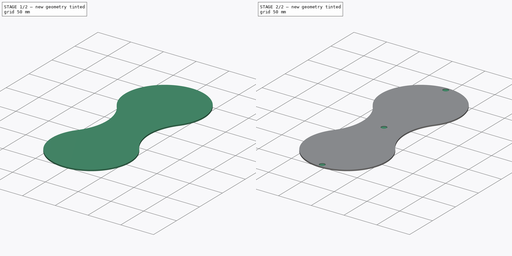
[diagram: build sequence overview — one tinted view per stage of 2, left to right]
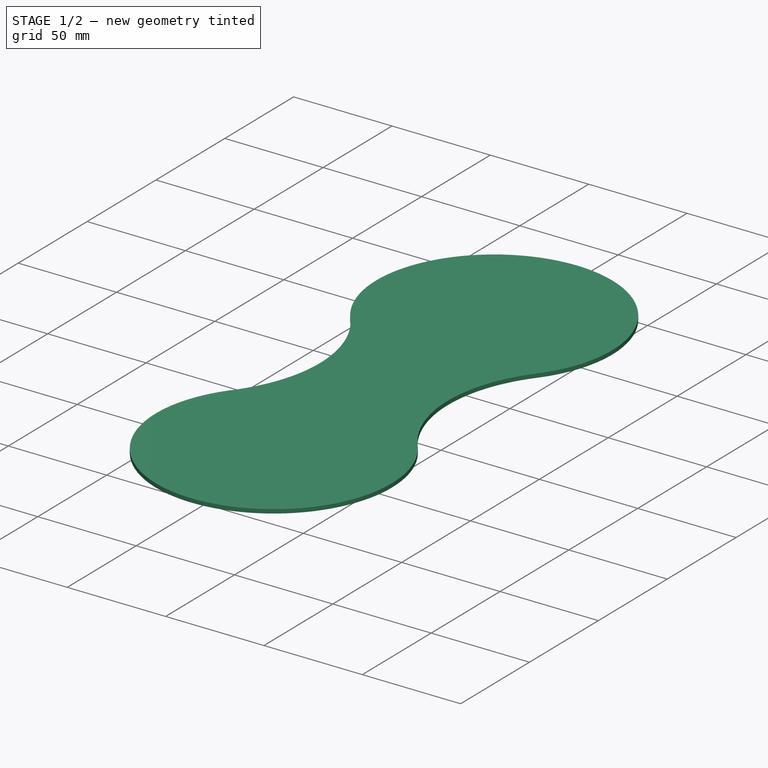
[diagram: stage 1 of 2 — iso view after this stage's code; geometry added in this stage tinted green]
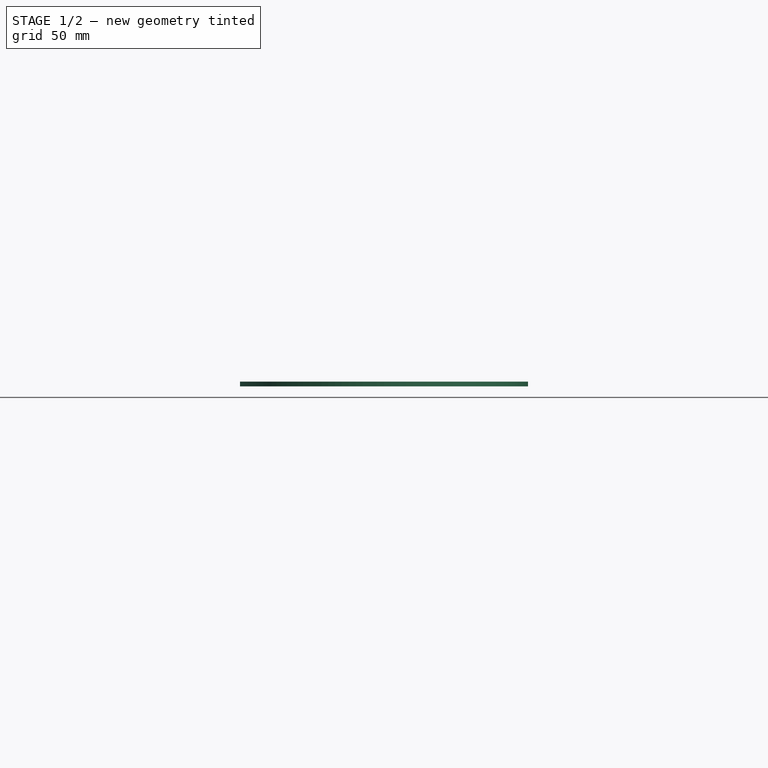
[diagram: stage 1 of 2 — front view after this stage's code; geometry added in this stage tinted green]
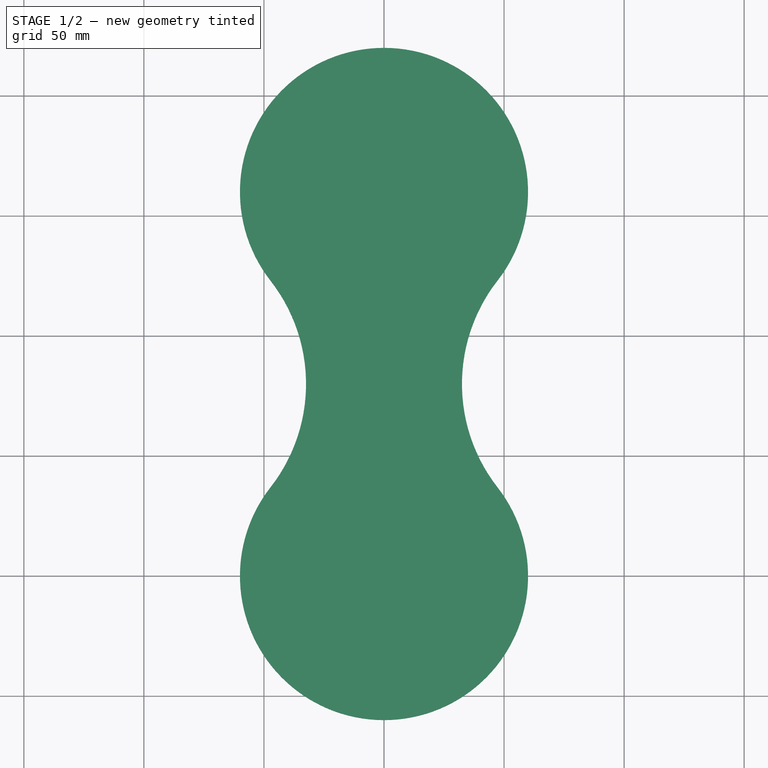
[diagram: stage 1 of 2 — top view after this stage's code; geometry added in this stage tinted green]
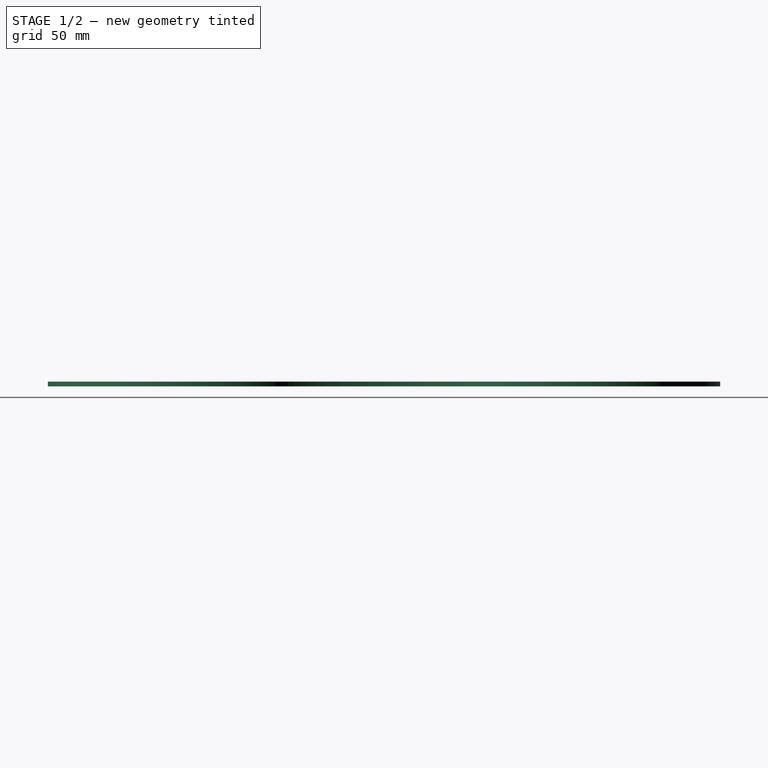
[diagram: stage 1 of 2 — right view after this stage's code; geometry added in this stage tinted green]
FCSTD DOCUMENT  (FreeCAD 0.19R24276 (Git))
Label: Art2SideCover
License: All rights reserved
LicenseURL: http://en.wikipedia.org/wiki/All_rights_reserved
objects: PartDesign::CoordinateSystem×4, Sketcher::SketchObject×2, Spreadsheet::Sheet×1, PartDesign::Pad×1, PartDesign::Pocket×1, PartDesign::Body×1
note: 11 computed .brp shape members not serialized (recipe doc carries the construction recipe); baked Part::Feature solids carry a one-line shape summary decoded from their .brp

FEATURE [Spreadsheet::Sheet] Spreadsheet
  cells = A2=M3BoltBodyRadius; B2(M3BoltBodyRadius)=1.7; A3=M3BoltHeadRadius; B3(M3BoltHeadRadius)=2.95; A4=M3NutCircumradius; B4(M3NutCircumradius)=3.35; A5=M3NutThickness; B5(M3NutThickness)=3; A6=Bearing655ZZBodyRadius; B6(Bearing655ZZBodyRadius)=8.199999999999999; A7=MagnetRadius; B7(MagnetRadius)=4.2; A8=MagnetThickness; B8(MagnetThickness)=1.1
FEATURE [Sketcher::SketchObject] Sketch
  FullyConstrained = true
  MapMode = 5
  Support = -> [XY_Plane]
  sketch-geometry (4):
    g0: ArcOfCircle CenterX=0 CenterY=0 CenterZ=0 NormalX=0 NormalY=0 NormalZ=1 AngleXU=0 Radius=60 StartAngle=2.47872 EndAngle=6.94606
    g1: ArcOfCircle CenterX=102.47 CenterY=80 CenterZ=0 NormalX=0 NormalY=0 NormalZ=1 AngleXU=0 Radius=70 StartAngle=2.47872 EndAngle=3.80447
    g2: ArcOfCircle CenterX=0 CenterY=160 CenterZ=0 NormalX=0 NormalY=0 NormalZ=1 AngleXU=0 Radius=60 StartAngle=5.62031 EndAngle=10.0877
    g3: ArcOfCircle CenterX=-102.47 CenterY=80 CenterZ=0 NormalX=0 NormalY=0 NormalZ=1 AngleXU=0 Radius=70 StartAngle=5.62031 EndAngle=6.94606
  constraints (11):
    c: Coincident(g0,g-1)
    c: PointOnObject(g2,g-2)
    c: Radius(g0) = 60
    c: Tangent(g3,g2) = 1.5708
    c: Tangent(g3,g0) = 1.5708
    c: Tangent(g1,g0) = 1.5708
    c: Tangent(g2,g1) = 1.5708
    c: DistanceY(g0,g2) = 160
    c: Equal(g2,g0)
    c: Equal(g3,g1)
    c: Radius(g1) = 70
FEATURE [PartDesign::Pad] Pad
  Direction = (1,1,1)
  Length = 2
  Length2 = 100
  Profile = -> Sketch
  Refine = true
  Type = 0
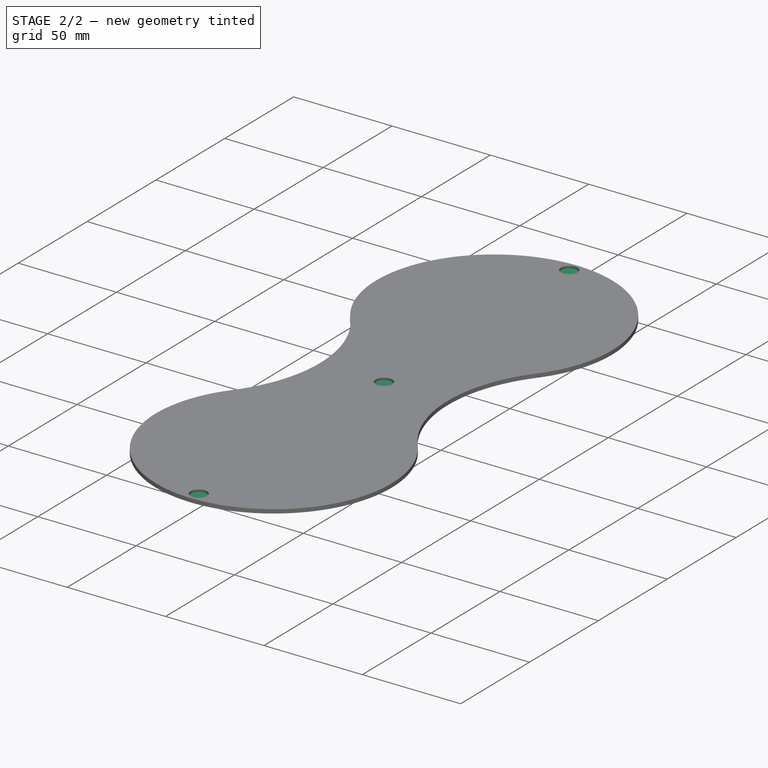
[diagram: stage 2 of 2 — iso view after this stage's code; geometry added in this stage tinted green]
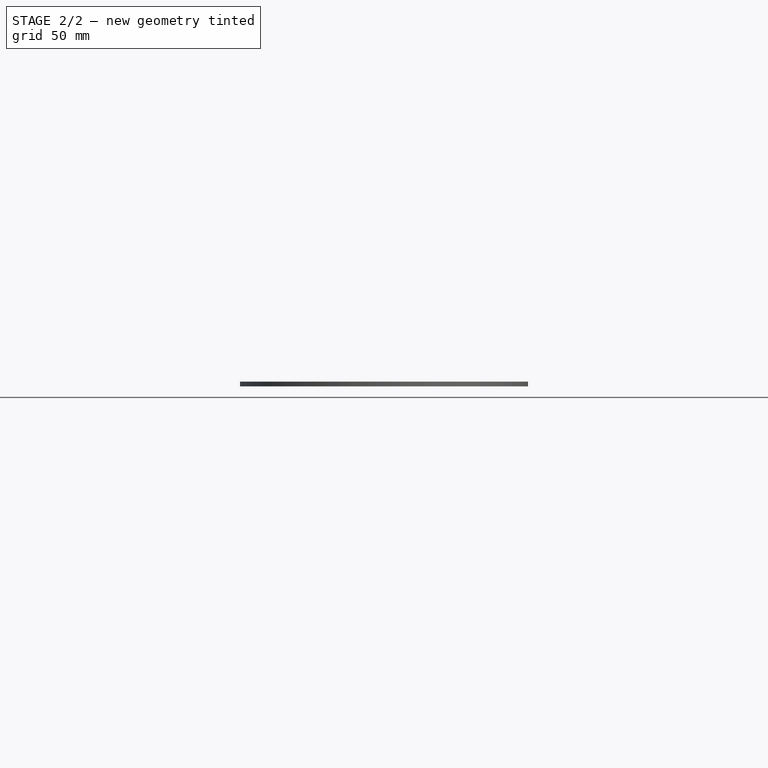
[diagram: stage 2 of 2 — front view after this stage's code; geometry added in this stage tinted green]
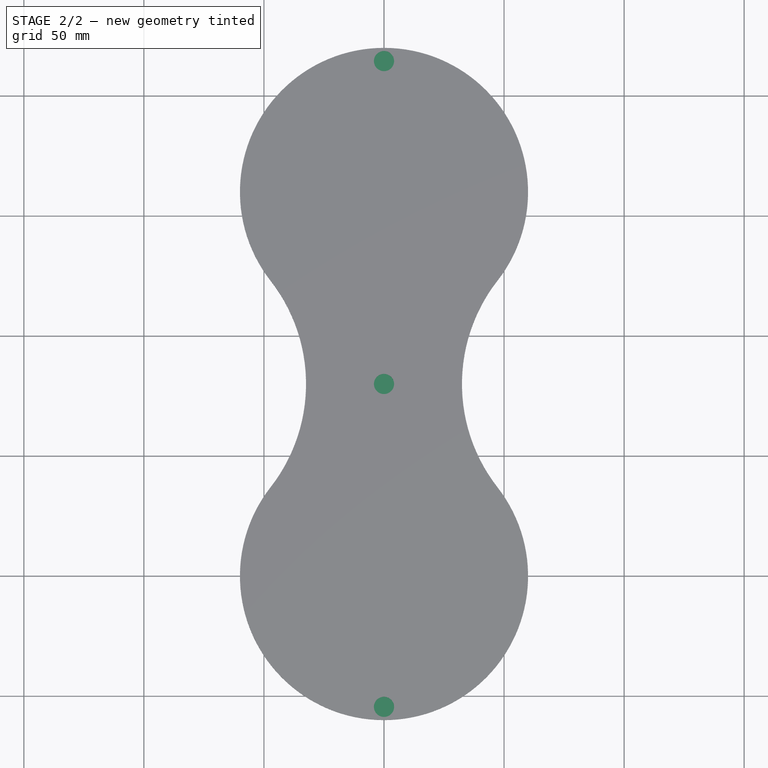
[diagram: stage 2 of 2 — top view after this stage's code; geometry added in this stage tinted green]
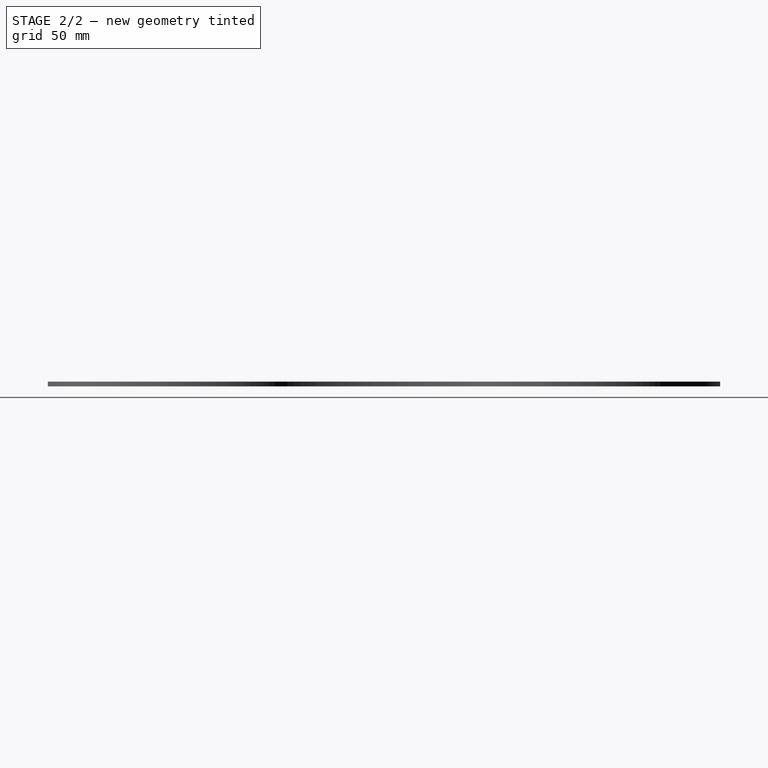
[diagram: stage 2 of 2 — right view after this stage's code; geometry added in this stage tinted green]
FEATURE [Sketcher::SketchObject] Sketch001
  FullyConstrained = true
  MapMode = 5
  Placement = pos=(0,0,2) rot=(0,0,1;0rad)
  Support = -> [Pad]
  expr: Constraints[5] = Spreadsheet.MagnetRadius
  sketch-geometry (3):
    g0: Circle CenterX=0 CenterY=-54.5 CenterZ=0 NormalX=0 NormalY=0 NormalZ=1 AngleXU=0 Radius=4.2
    g1: Circle CenterX=0 CenterY=214.5 CenterZ=0 NormalX=0 NormalY=0 NormalZ=1 AngleXU=0 Radius=4.2
    g2: Circle CenterX=0 CenterY=80 CenterZ=0 NormalX=0 NormalY=0 NormalZ=1 AngleXU=0 Radius=4.2
  constraints (9):
    c: PointOnObject(g0,g-2)
    c: PointOnObject(g1,g-2)
    c: PointOnObject(g2,g-2)
    c: Equal(g1,g2)
    c: Equal(g2,g0)
    c: Radius(g0) = 4.2
    c: DistanceY(g-1,g2) = 80
    c: DistanceY(g0,g2) = 134.5
    c: DistanceY(g2,g1) = 134.5
FEATURE [PartDesign::Pocket] Pocket
  BaseFeature = -> Pad
  Length = 1.1
  Length2 = 100
  Profile = -> Sketch001
  Refine = true
  Type = 0
  expr: Length = Spreadsheet.MagnetThickness
FEATURE [PartDesign::CoordinateSystem] LCS_Art2SideCover
  AttacherType = Attacher::AttachEngine3D
  Placement = pos=(0,0,2) rot=(0,0,1;0rad)
FEATURE [PartDesign::CoordinateSystem] LCS_Magnet
  AttacherType = Attacher::AttachEngine3D
  MapMode = 11
  Placement = pos=(0,-54.5,0.9) rot=(0,0,1;1.5708rad)
  Support = -> [Pocket]
FEATURE [PartDesign::CoordinateSystem] LCS_Magnet1
  AttacherType = Attacher::AttachEngine3D
  MapMode = 11
  Placement = pos=(0,80,0.9) rot=(0,0,1;1.5708rad)
  Support = -> [Pocket]
FEATURE [PartDesign::CoordinateSystem] LCS_Magnet2
  AttacherType = Attacher::AttachEngine3D
  MapMode = 11
  Placement = pos=(0,214.5,0.9) rot=(0,0,1;1.5708rad)
  Support = -> [Pocket]
FEATURE [PartDesign::Body] Body  label="Art2SideCover"
  Group = -> [Sketch,Pad,Sketch001,Pocket,LCS_Art2SideCover,LCS_Magnet,LCS_Magnet1,LCS_Magnet2]
  Origin = -> Origin
  Tip = -> Pocket
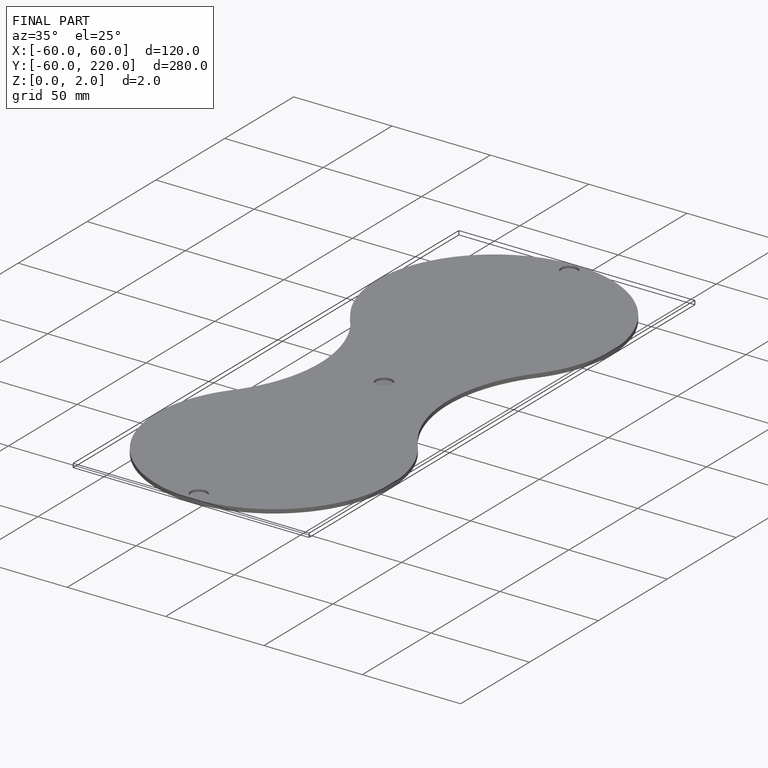
[diagram: finished part — iso view with bounding-box wireframe]
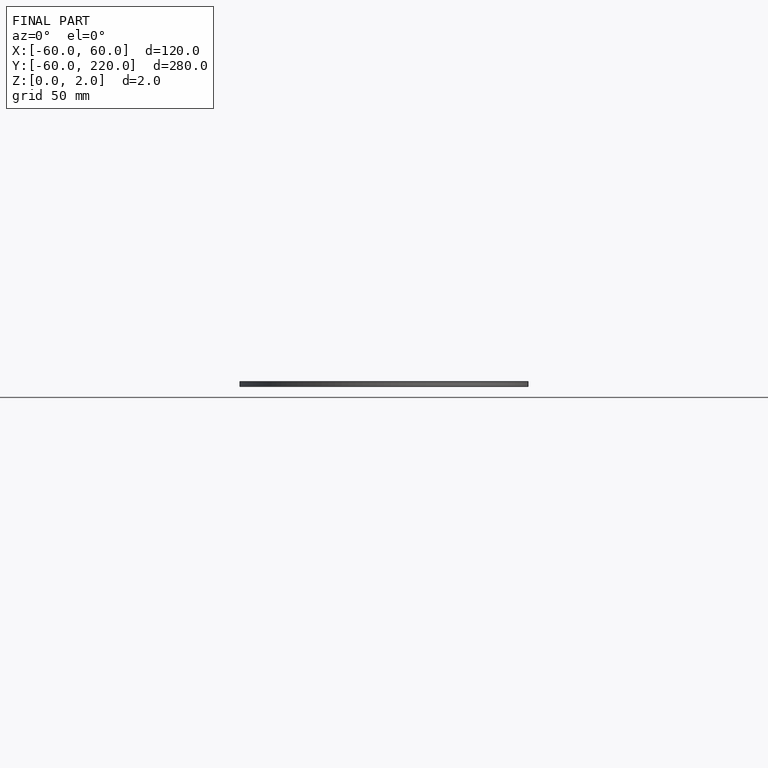
[diagram: finished part — front view with bounding-box wireframe]
